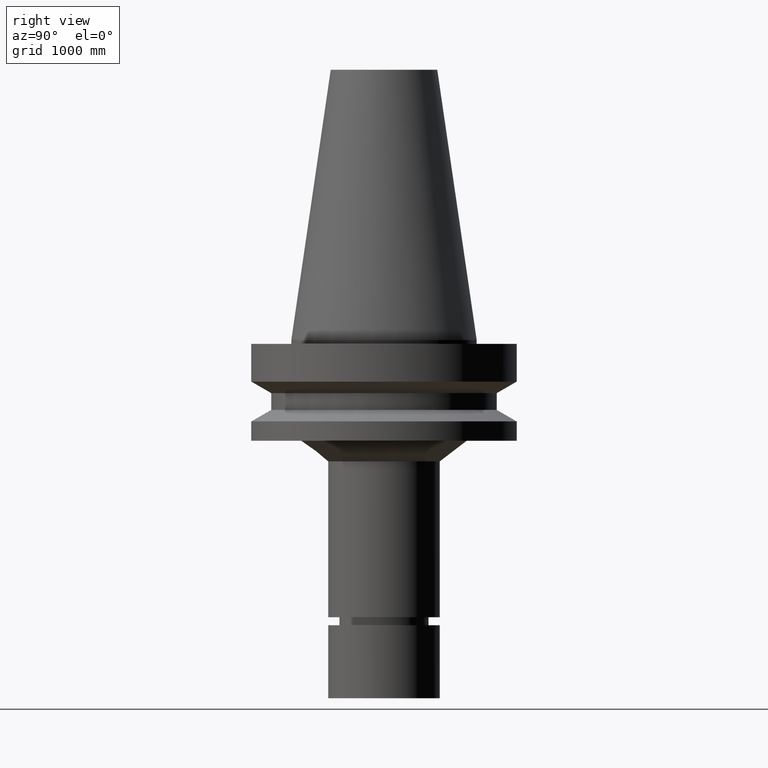
[diagram: clean part render]
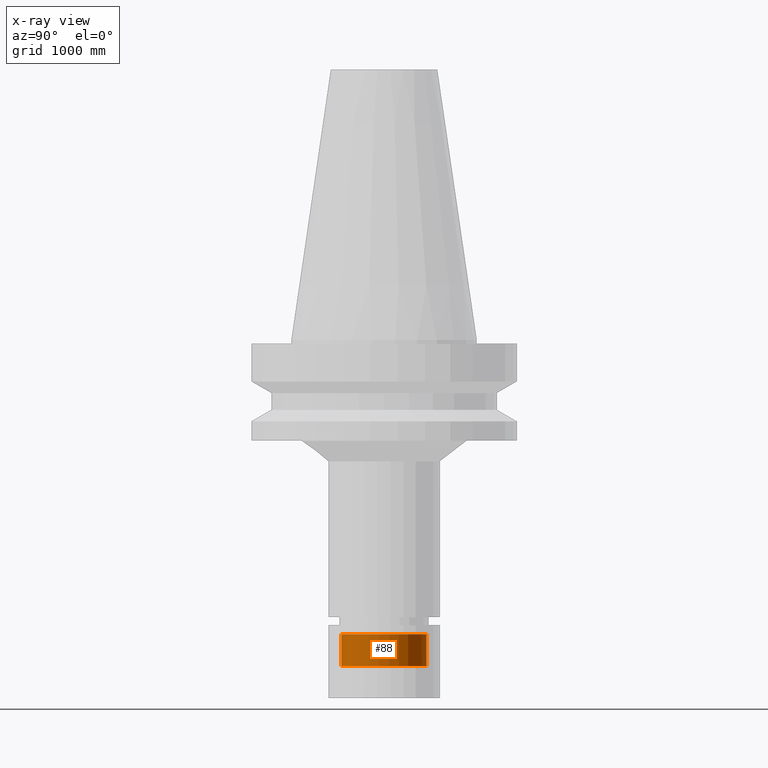
[diagram: x-ray — body ghosted, one internal face saturated and labeled with its STEP entity id]
A machine part, right view, then the same camera in x-ray: the body is ghosted and one INTERNAL B-rep face — a face not visible from any outside direction — is saturated and labeled: STEP entity #88.
In plain terms, the highlighted cylindrical surface (bore or boss wall) has radius 406.4 mm, axis along (-0, -0, 1).
Its self-contained STEP definition (entity closure, byte-faithful):
#88=ADVANCED_FACE('Unnamed[1]',(#221,#222),#223,.T.);
#119=EDGE_CURVE('Unnamed[1]',#266,#266,#267,.T.);
#170=EDGE_CURVE('Unnamed[1]',#346,#346,#347,.T.);
#221=FACE_BOUND('',#402,.T.);
#222=FACE_BOUND('',#403,.T.);
#223=CYLINDRICAL_SURFACE('',#404,16.0);
#266=VERTEX_POINT('',#458);
#267=CIRCLE('',#459,16.0);
#346=VERTEX_POINT('',#557);
#347=CIRCLE('',#558,16.0);
#402=EDGE_LOOP('',(#602));
#403=EDGE_LOOP('',(#603));
#404=AXIS2_PLACEMENT_3D('',#604,#605,#606);
#458=CARTESIAN_POINT('',(6.79068717130714E-015,16.0,-110.90033756729));
#459=AXIS2_PLACEMENT_3D('',#647,#648,#649);
#557=CARTESIAN_POINT('',(7.52513275041975E-015,16.0,-122.894744111674));
#558=AXIS2_PLACEMENT_3D('',#740,#741,#742);
#602=ORIENTED_EDGE('',*,*,#119,.F.);
#603=ORIENTED_EDGE('',*,*,#170,.T.);
#604=CARTESIAN_POINT('',(7.15790996086345E-015,1.63636547396048E-014,-116.897540839482));
#605=DIRECTION('',(-6.12323399573677E-017,-1.52619998477725E-017,1.0));
#606=DIRECTION('',(-5.7616806938795E-033,1.0,1.52619998477725E-017));
#647=CARTESIAN_POINT('',(6.79068717130714E-015,1.62721254241778E-014,-110.90033756729));
#648=DIRECTION('',(-6.12323399573677E-017,-1.52619998477725E-017,1.0));
#649=DIRECTION('',(-5.7616806938795E-033,1.0,1.52619998477725E-017));
#740=CARTESIAN_POINT('',(7.52513275041976E-015,1.64551840550319E-014,-122.894744111674));
#741=DIRECTION('',(-6.12323399573677E-017,-1.52619998477725E-017,1.0));
#742=DIRECTION('',(-5.76168069387389E-033,1.0,1.52619998477725E-017));